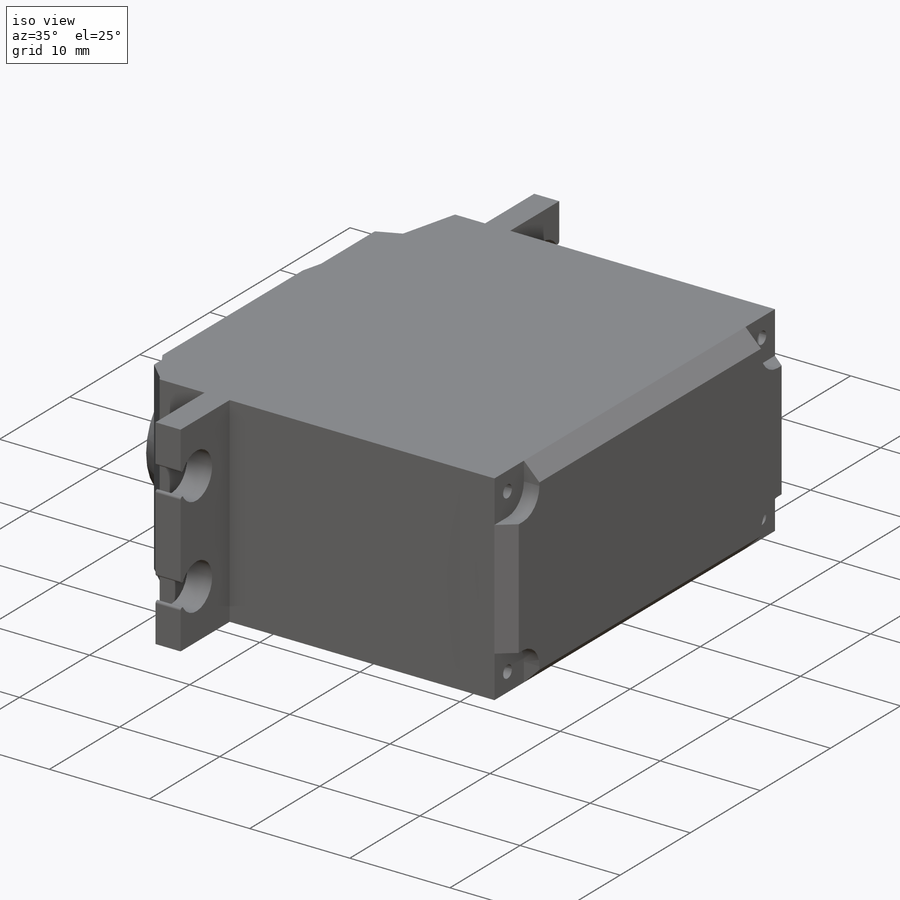
[diagram: iso view]
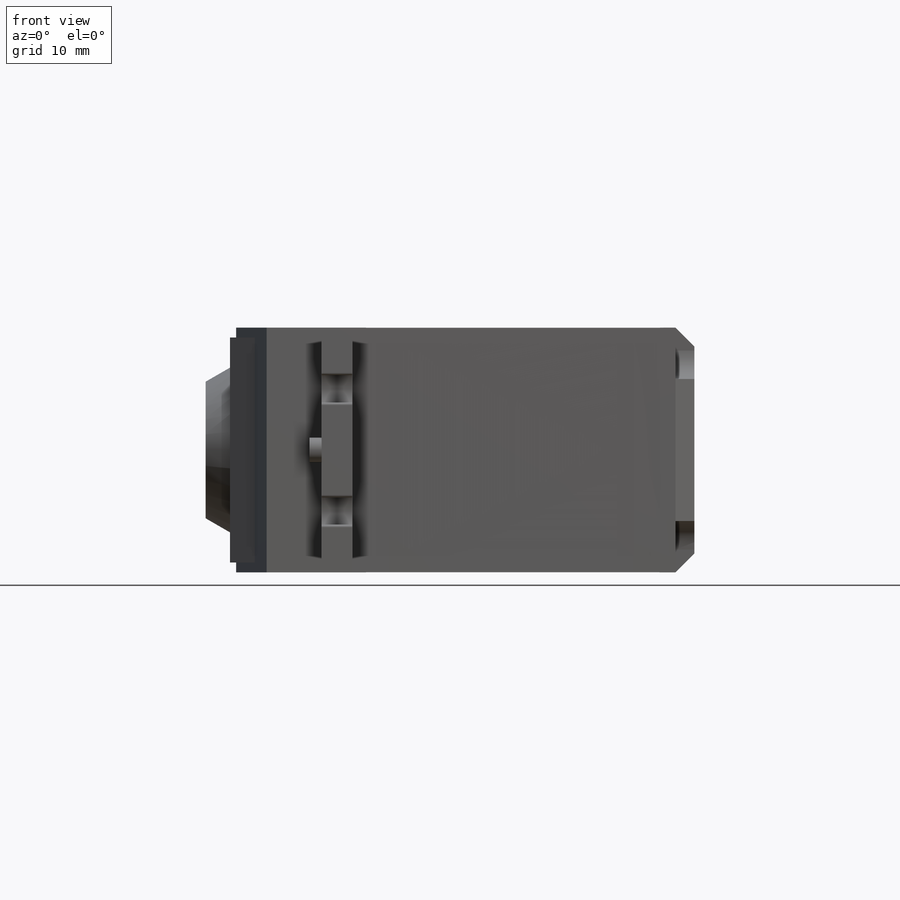
[diagram: front view]
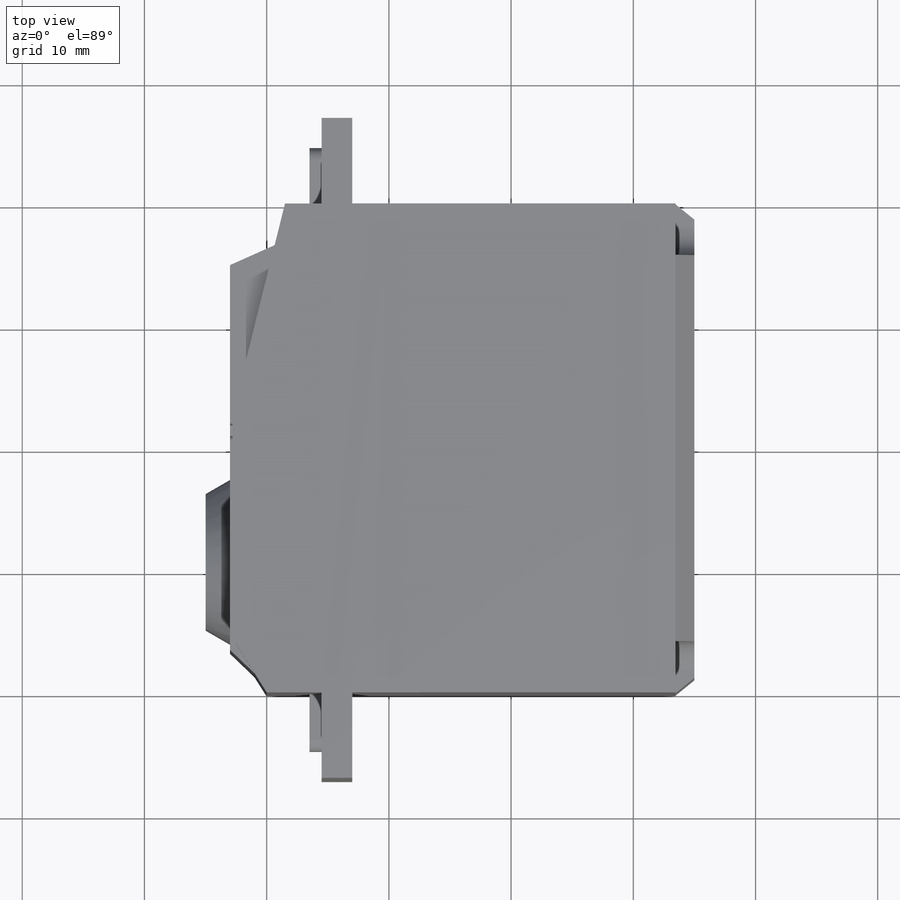
[diagram: top view]
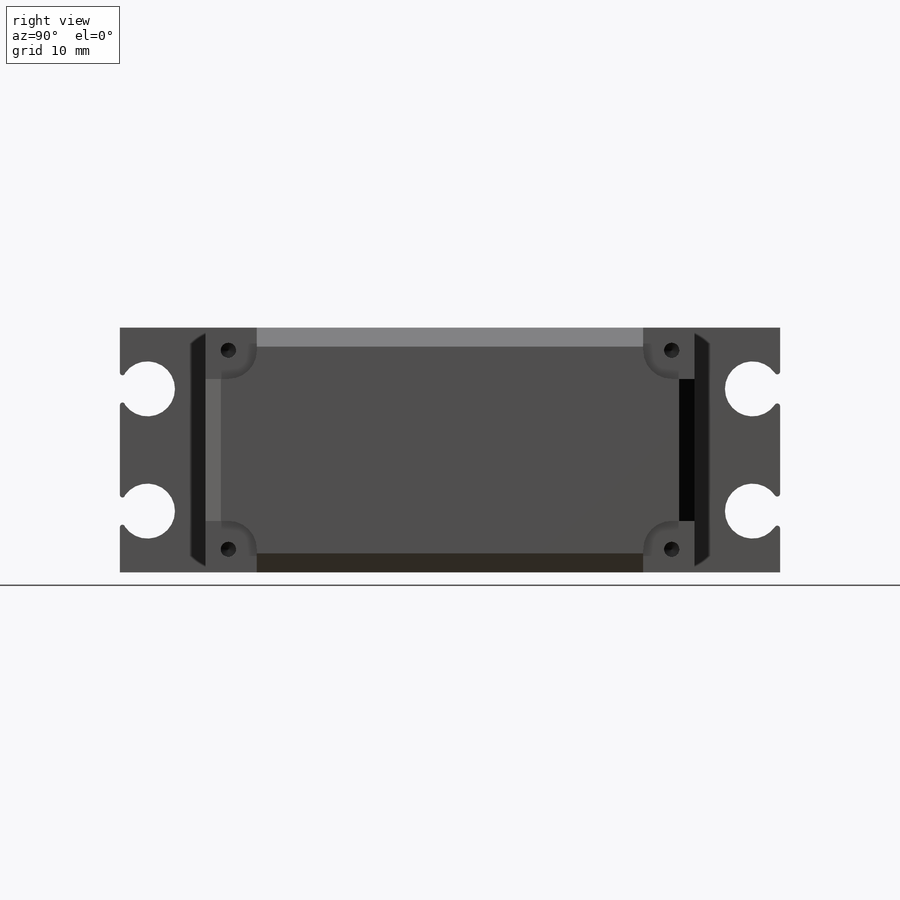
[diagram: right view]
SOLIDWORKS PART (.sldprt)
format: sldprt  version: not decoded by parser v0  size: 838,144 bytes
history: native  units: mm
features: sketch x17, cut_extrude x8, extrude x7, thread x4, plane x3, chamfer x2, material x1, hole x1 (+10 scaffold rows collapsed)
feature tree (53):
  scaffold x10  (default folders/planes/origin — collapsed)
  material  "材质 <未指定>"
  plane  "前视基准面"
  plane  "上视基准面"
  plane  "右视基准面"
  sketch  "草图1"  dims[D1=40.0mm D2=20.0mm]
  extrude  "凸台-拉伸1"  Depth=20mm
  sketch  "草图3"  dims[c1.D1=3.0mm c1.D2=7.0mm c1.2.5=2.5mm c1.D3=3.0mm c1.D4=3.5mm c1.D5=4.0mm c1.D6=13.0mm c1.D7=31.5mm c1.D8=2.8mm c1.D9=1.0mm c1.D10=4.5mm c1.D11=7.0mm c1.D12=~38.902494mm c2.D9=40.02mm c2.D12=3.8mm c2.D13=1.0mm c2.D14=0.01mm c3.D12=13.0mm c3.D13=0.5mm c3.D15=4.7mm]
  extrude  "凸台-拉伸2"  Depth=20.02mm
  sketch  "草图4"  dims[c1.D5=4.5mm c1.D6=4.5mm c2.D5=2.25mm c2.D8=~0.205685mm c2.D3=3.7mm c2.D4=4.8mm c2.D7=9.9mm c2.1.3=1.3mm c3.D8=~2.71065mm c3.D6=5.0mm c3.D7=~7.97258mm c3.D4=4.745mm c3.D1=1.0mm c3.D2=1.0mm]
  cut_extrude  "切除-拉伸1"  [1 undecoded]
  extrude  "凸台-拉伸3"  [1 undecoded]
  sketch  "草图4<3>"  dims[D1=1.0mm]
  sketch  "草图5"  dims[D1=0.5mm D2=4.7mm]
  cut_extrude  "切除-拉伸2"  Depth=0.8mm
  sketch  "草图6"
  cut_extrude  "切除-拉伸5"  Depth=0.8mm
  sketch  "草图7"  dims[D2=2.0mm 0.4=0.4mm D4=0.4mm D1=13.0mm D3=1.0mm D6=16.0mm D7=10.5mm D8=1.25mm D9=18.42mm D5=1.0mm]
  cut_extrude  "切除-拉伸6"  Depth=0.2mm
  sketch  "草图8"  dims[D1=13.6mm D2=29.2mm]
  extrude  "凸台-拉伸4"  Depth=2mm
  chamfer  "倒角1"  Distance=2.1mm Angle=30deg
  sketch  "草图9"  dims[D1=11.0mm D2=10.0mm]
  cut_extrude  "切除-拉伸7"  Depth=0.1mm
  sketch  "草图10"  dims[D1=5.9mm]
  cut_extrude  "切除-拉伸8"  Depth=1mm
  sketch  "草图11"  dims[D5=2.25mm D8=0.21mm D1=1.0mm D2=1.0mm D3=3.7mm D4=4.745mm D6=5.0mm D7=1.3mm D9=~49.368049mm]
  cut_extrude  "切除-拉伸9"  [1 undecoded]
  extrude  "凸台-拉伸5"  [1 undecoded]
  sketch  "草图11<3>"  dims[D1=1.0mm]
  sketch  "草图12"  dims[c1.D1=~20.000001mm c2.D1=~179.985676deg c3.D1=0.01mm c3.D2=20.0mm c3.D3=6.0mm c3.D4=0.01mm c3.D5=37.5mm c4.D3=5.0mm c4.D6=2.0mm c4.D7=2.0mm]
  extrude  "凸台-拉伸6"  Depth=20.02mm
  chamfer  "倒角2"  Distance=1.55mm Angle=45deg
  sketch  "草图13"  dims[c1.D1=1.4mm c1.D2=0.8mm c1.D3=~5.440358mm c2.D3=45.0deg c2.D4=4.2mm]
  cut_extrude  "切除-拉伸10"  [1 undecoded]
  hole  "M1.6 螺纹孔1"  [1 undecoded]
  sketch  "3D草图1"
  sketch  "草图15"  dims[hole-wizard template sketch: 46 standard entries collapsed; hole parameters kept: c15.螺纹孔钻头直径=1.25mm c15.螺纹孔钻头深度=8.0mm c15.D3=~14.816244mm c15.导头角度=118.0deg]
  thread  "孔螺蚊线1"  Diameter=7mm  [1 undecoded]
  thread  "孔螺蚊线2"  Diameter=7mm  [1 undecoded]
  thread  "孔螺蚊线3"  Diameter=7mm  [1 undecoded]
  thread  "孔螺蚊线4"  Diameter=7mm  [1 undecoded]
  sketch  "草图16"
  extrude  "凸台-拉伸7"  Depth=0.01mm
decode coverage: 30 of 39 modeling features carry decoded parameters
note: ~ marks probable driven/reference dimensions
note: 10 parameter values undecoded
summary: no parameter record found for 6 features
note: suppression state not decoded; provenance and decode notes live in map.json
